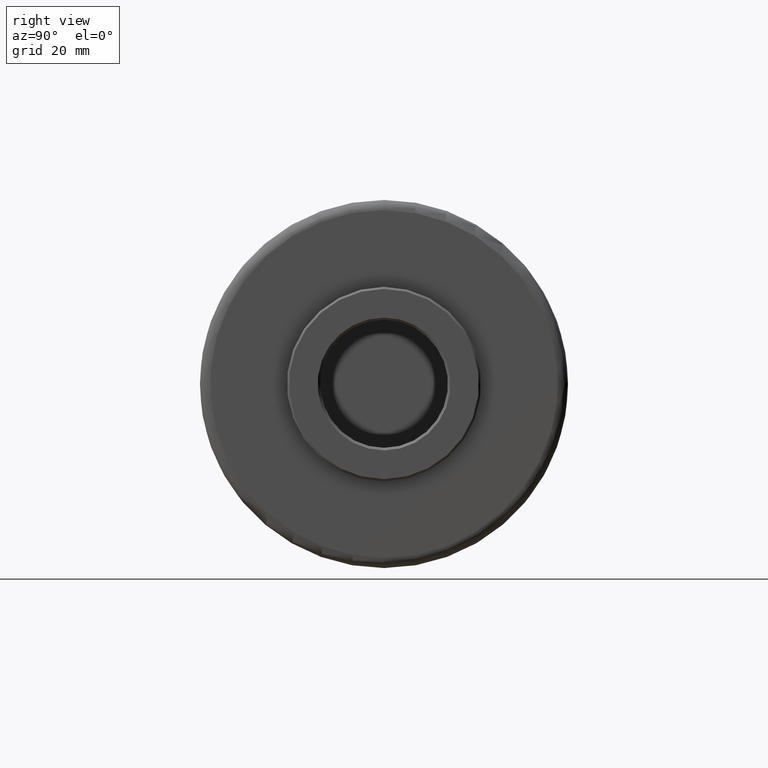
[diagram: clean part render]
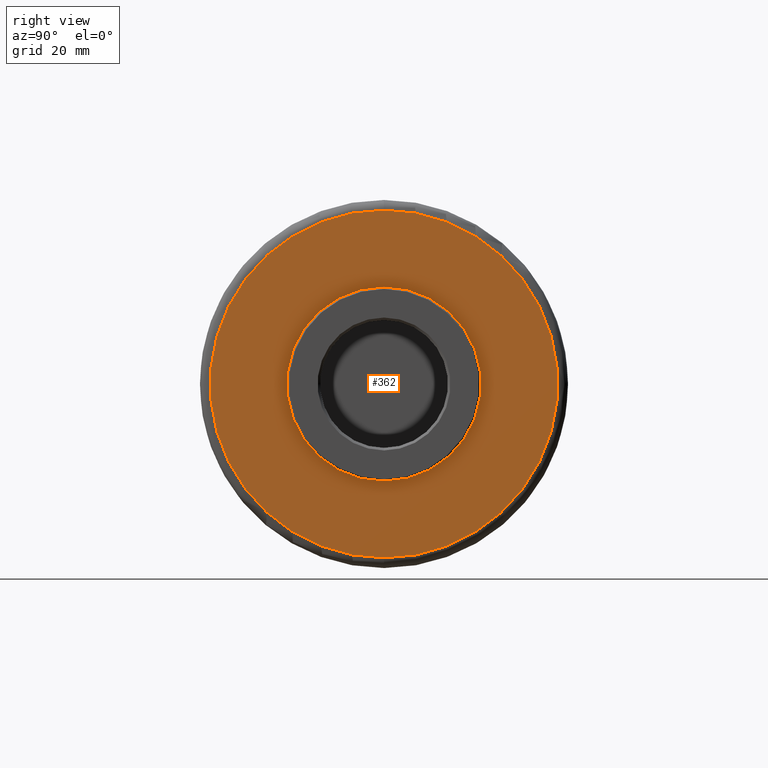
[diagram: same view with one face highlighted and labeled with its STEP entity id]
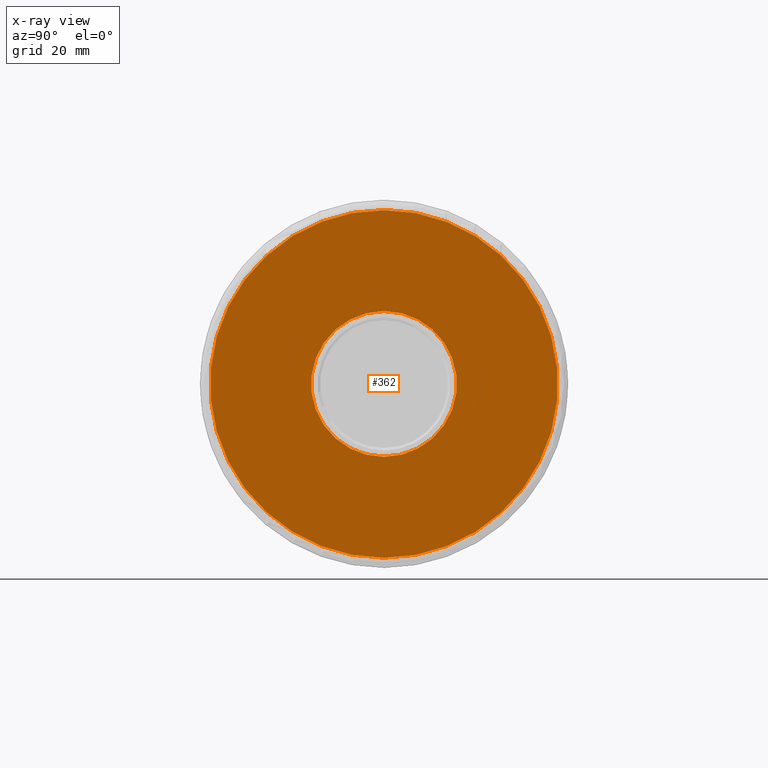
[diagram: x-ray of the same camera — body ghosted, the highlighted face saturated]
A machine part, right view. The second image highlights one B-rep face of the part: STEP entity #362.
The next image is the same camera in x-ray: the body ghosted, the highlighted face saturated — about 0% of this face is hidden behind the body in this view.
In plain terms, the highlighted planar face has unit normal (-1, 0, 0).
Its self-contained STEP definition (entity closure, byte-faithful):
#3 = AXIS2_PLACEMENT_3D ( 'NONE', #689, #6, #978 ) ;
#6 = DIRECTION ( 'NONE',  ( 1.000000000000000000, -0.0000000000000000000, -0.0000000000000000000 ) ) ;
#10 = CIRCLE ( 'NONE', #98, 14.24999999999999300 ) ;
#46 = CIRCLE ( 'NONE', #1327, 34.00000000000000700 ) ;
#63 = CARTESIAN_POINT ( 'NONE',  ( 96.50000000000000000, 0.0000000000000000000, 34.00000000000000700 ) ) ;
#66 = DIRECTION ( 'NONE',  ( 0.0000000000000000000, 0.0000000000000000000, 1.000000000000000000 ) ) ;
#98 = AXIS2_PLACEMENT_3D ( 'NONE', #1350, #708, #809 ) ;
#143 = FACE_OUTER_BOUND ( 'NONE', #633, .T. ) ;
#296 = EDGE_CURVE ( 'NONE', #1009, #802, #742, .T. ) ;
#362 = ADVANCED_FACE ( 'NONE', ( #143, #611 ), #680, .F. ) ;
#365 = ORIENTED_EDGE ( 'NONE', *, *, #1159, .T. ) ;
#505 = CARTESIAN_POINT ( 'NONE',  ( 96.50000000000002800, 1.232595164407830900E-029, 0.0000000000000000000 ) ) ;
#585 = DIRECTION ( 'NONE',  ( 0.0000000000000000000, 0.0000000000000000000, 1.000000000000000000 ) ) ;
#611 = FACE_BOUND ( 'NONE', #615, .T. ) ;
#615 = EDGE_LOOP ( 'NONE', ( #770, #365 ) ) ;
#632 = ORIENTED_EDGE ( 'NONE', *, *, #1131, .T. ) ;
#633 = EDGE_LOOP ( 'NONE', ( #632, #1324 ) ) ;
#672 = CARTESIAN_POINT ( 'NONE',  ( 96.50000000000002800, 2.736911063134408300E-045, 14.24999999999999300 ) ) ;
#680 = PLANE ( 'NONE',  #746 ) ;
#689 = CARTESIAN_POINT ( 'NONE',  ( 96.50000000000000000, 0.0000000000000000000, 0.0000000000000000000 ) ) ;
#708 = DIRECTION ( 'NONE',  ( -1.000000000000000000, -4.869399230812090400E-016, -0.0000000000000000000 ) ) ;
#735 = VERTEX_POINT ( 'NONE', #812 ) ;
#742 = CIRCLE ( 'NONE', #1274, 14.24999999999999300 ) ;
#746 = AXIS2_PLACEMENT_3D ( 'NONE', #825, #1015, #585 ) ;
#770 = ORIENTED_EDGE ( 'NONE', *, *, #296, .T. ) ;
#786 = VERTEX_POINT ( 'NONE', #63 ) ;
#802 = VERTEX_POINT ( 'NONE', #1289 ) ;
#806 = DIRECTION ( 'NONE',  ( -1.000000000000000000, -4.869399230812090400E-016, -0.0000000000000000000 ) ) ;
#809 = DIRECTION ( 'NONE',  ( 0.0000000000000000000, -1.000000000000000000, 0.0000000000000000000 ) ) ;
#812 = CARTESIAN_POINT ( 'NONE',  ( 96.50000000000000000, 4.286263797015737300E-015, -34.00000000000000700 ) ) ;
#825 = CARTESIAN_POINT ( 'NONE',  ( 96.50000000000000000, 33.90200000000000100, -33.90200000000000100 ) ) ;
#830 = EDGE_CURVE ( 'NONE', #735, #786, #1084, .T. ) ;
#978 = DIRECTION ( 'NONE',  ( 0.0000000000000000000, 0.0000000000000000000, 1.000000000000000000 ) ) ;
#1009 = VERTEX_POINT ( 'NONE', #672 ) ;
#1015 = DIRECTION ( 'NONE',  ( -1.000000000000000000, 0.0000000000000000000, 0.0000000000000000000 ) ) ;
#1045 = DIRECTION ( 'NONE',  ( 1.000000000000000000, -0.0000000000000000000, -0.0000000000000000000 ) ) ;
#1084 = CIRCLE ( 'NONE', #3, 34.00000000000000700 ) ;
#1131 = EDGE_CURVE ( 'NONE', #786, #735, #46, .T. ) ;
#1137 = DIRECTION ( 'NONE',  ( 0.0000000000000000000, -1.000000000000000000, 0.0000000000000000000 ) ) ;
#1159 = EDGE_CURVE ( 'NONE', #802, #1009, #10, .T. ) ;
#1245 = CARTESIAN_POINT ( 'NONE',  ( 96.50000000000000000, 0.0000000000000000000, 0.0000000000000000000 ) ) ;
#1274 = AXIS2_PLACEMENT_3D ( 'NONE', #505, #806, #1137 ) ;
#1289 = CARTESIAN_POINT ( 'NONE',  ( 96.50000000000002800, 1.745121688784977800E-015, -14.24999999999999300 ) ) ;
#1324 = ORIENTED_EDGE ( 'NONE', *, *, #830, .T. ) ;
#1327 = AXIS2_PLACEMENT_3D ( 'NONE', #1245, #1045, #66 ) ;
#1350 = CARTESIAN_POINT ( 'NONE',  ( 96.50000000000002800, 1.232595164407830900E-029, 0.0000000000000000000 ) ) ;